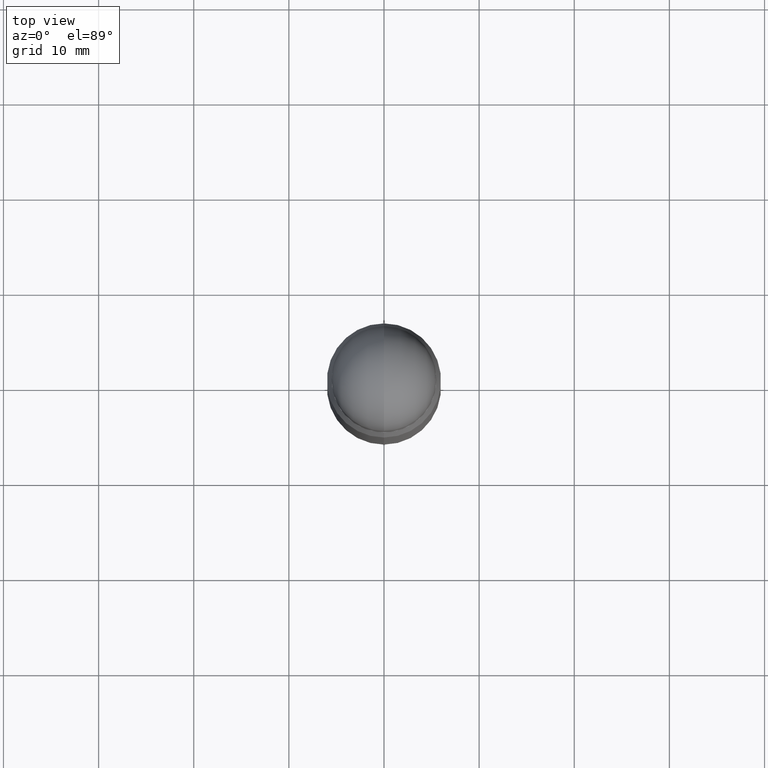
[diagram: clean part render]
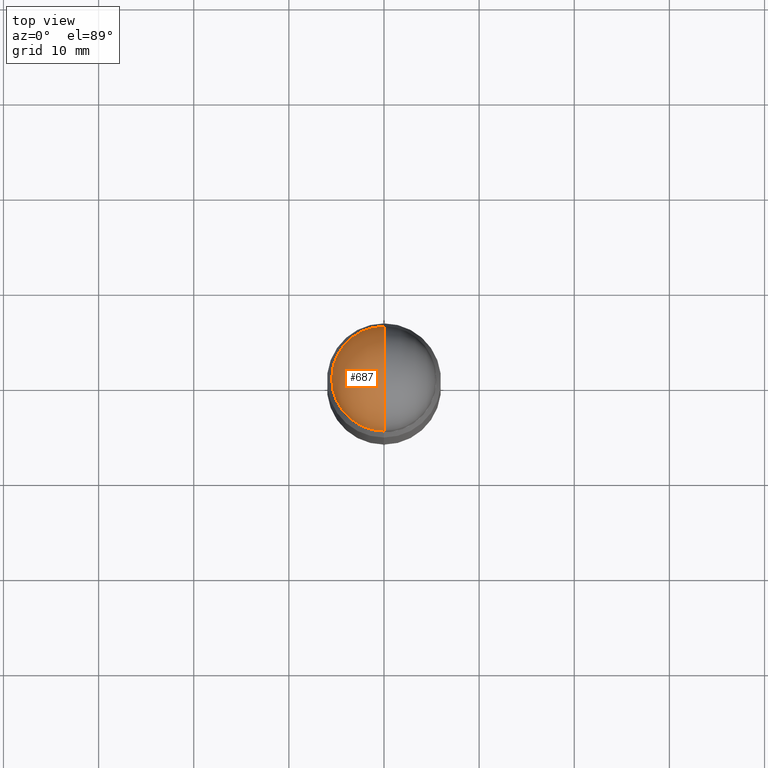
[diagram: same view with one face highlighted and labeled with its STEP entity id]
A machine part, top view. The second image highlights one B-rep face of the part: STEP entity #687.
In plain terms, the highlighted spherical surface has radius 5.5004 mm.
Its self-contained STEP definition (entity closure, byte-faithful):
#25 = VERTEX_POINT ( 'NONE', #466 ) ;
#29 = EDGE_CURVE ( 'NONE', #688, #951, #1102, .T. ) ;
#42 = EDGE_LOOP ( 'NONE', ( #605, #447, #306, #78 ) ) ;
#49 = VERTEX_POINT ( 'NONE', #372 ) ;
#51 = DIRECTION ( 'NONE',  ( 1.000000000000000000, -6.982962677686265922E-15, -1.566701062080038578E-31 ) ) ;
#65 = DIRECTION ( 'NONE',  ( 6.982962677686265922E-15, 1.000000000000000000, -3.469213568495363757E-15 ) ) ;
#78 = ORIENTED_EDGE ( 'NONE', *, *, #97, .T. ) ;
#84 = DIRECTION ( 'NONE',  ( 1.000000000000000000, -6.860497997771530774E-15, -5.827999781331232286E-31 ) ) ;
#97 = EDGE_CURVE ( 'NONE', #951, #49, #127, .T. ) ;
#127 = CIRCLE ( 'NONE', #979, 0.2165500000000001035 ) ;
#134 = SPHERICAL_SURFACE ( 'NONE', #543, 0.2165500000000003811 ) ;
#149 = CIRCLE ( 'NONE', #1051, 0.2165500000000003811 ) ;
#224 = CARTESIAN_POINT ( 'NONE',  ( 6.691414020924079206E-29, -7.710307624460063053E-16, -0.2165500000000001868 ) ) ;
#265 = CARTESIAN_POINT ( 'NONE',  ( 6.713302002095624841E-29, -7.396859276218296457E-16, -0.2165500000000001868 ) ) ;
#306 = ORIENTED_EDGE ( 'NONE', *, *, #29, .T. ) ;
#322 = EDGE_CURVE ( 'NONE', #25, #688, #958, .T. ) ;
#372 = CARTESIAN_POINT ( 'NONE',  ( -1.485640841417359468E-15, -0.2165500000000009917, -0.2165499999999994374 ) ) ;
#396 = AXIS2_PLACEMENT_3D ( 'NONE', #715, #648, #462 ) ;
#401 = CARTESIAN_POINT ( 'NONE',  ( -0.2165500000000001035, 1.323835882843576813E-16, -0.2165500000000001868 ) ) ;
#441 = DIRECTION ( 'NONE',  ( -1.000000000000000000, 6.982962677686265922E-15, 1.566701062080016245E-31 ) ) ;
#447 = ORIENTED_EDGE ( 'NONE', *, *, #322, .T. ) ;
#462 = DIRECTION ( 'NONE',  ( 1.000000000000000000, -6.982962677686265922E-15, 0.000000000000000000 ) ) ;
#466 = CARTESIAN_POINT ( 'NONE',  ( 7.252127585071107106E-29, 2.708444841998830582E-17, 2.048885995248197414E-16 ) ) ;
#543 = AXIS2_PLACEMENT_3D ( 'NONE', #915, #51, #65 ) ;
#578 = CARTESIAN_POINT ( 'NONE',  ( 1.512160567853029651E-15, 0.2165499999999994929, -0.2165500000000009362 ) ) ;
#588 = DIRECTION ( 'NONE',  ( 1.000000000000000000, -6.982962677686265922E-15, 0.000000000000000000 ) ) ;
#605 = ORIENTED_EDGE ( 'NONE', *, *, #749, .F. ) ;
#648 = DIRECTION ( 'NONE',  ( 2.445468806185136597E-29, 3.479614466977828254E-15, 1.000000000000000000 ) ) ;
#669 = DIRECTION ( 'NONE',  ( 2.445468806185136597E-29, 3.479614466977828254E-15, 1.000000000000000000 ) ) ;
#687 = ADVANCED_FACE ( 'NONE', ( #1094 ), #134, .T. ) ;
#688 = VERTEX_POINT ( 'NONE', #578 ) ;
#700 = DIRECTION ( 'NONE',  ( 6.860497997771531562E-15, 1.000000000000000000, 0.000000000000000000 ) ) ;
#715 = CARTESIAN_POINT ( 'NONE',  ( 6.691414020924079206E-29, -7.710307624460063053E-16, -0.2165500000000001868 ) ) ;
#749 = EDGE_CURVE ( 'NONE', #25, #49, #149, .T. ) ;
#773 = CARTESIAN_POINT ( 'NONE',  ( 6.713302002095624841E-29, -7.396859276218296457E-16, -0.2165500000000001868 ) ) ;
#859 = DIRECTION ( 'NONE',  ( -6.982962677686265922E-15, -1.000000000000000000, 0.000000000000000000 ) ) ;
#885 = AXIS2_PLACEMENT_3D ( 'NONE', #773, #441, #859 ) ;
#915 = CARTESIAN_POINT ( 'NONE',  ( 6.713302002095624841E-29, -7.396859276218296457E-16, -0.2165500000000001868 ) ) ;
#951 = VERTEX_POINT ( 'NONE', #401 ) ;
#958 = CIRCLE ( 'NONE', #885, 0.2165500000000003811 ) ;
#979 = AXIS2_PLACEMENT_3D ( 'NONE', #224, #669, #588 ) ;
#1051 = AXIS2_PLACEMENT_3D ( 'NONE', #265, #84, #700 ) ;
#1094 = FACE_OUTER_BOUND ( 'NONE', #42, .T. ) ;
#1102 = CIRCLE ( 'NONE', #396, 0.2165500000000001035 ) ;